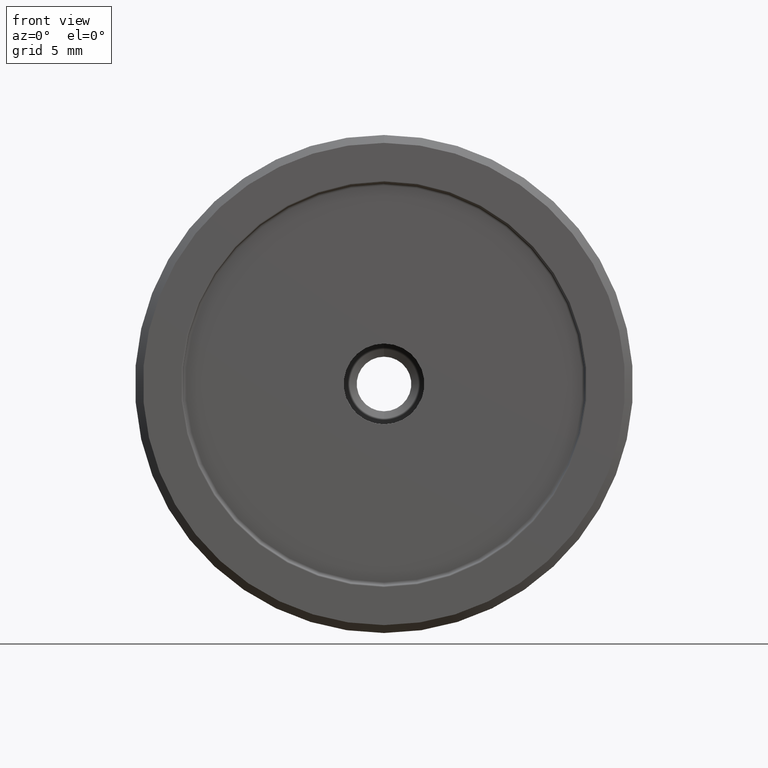
[diagram: clean part render]
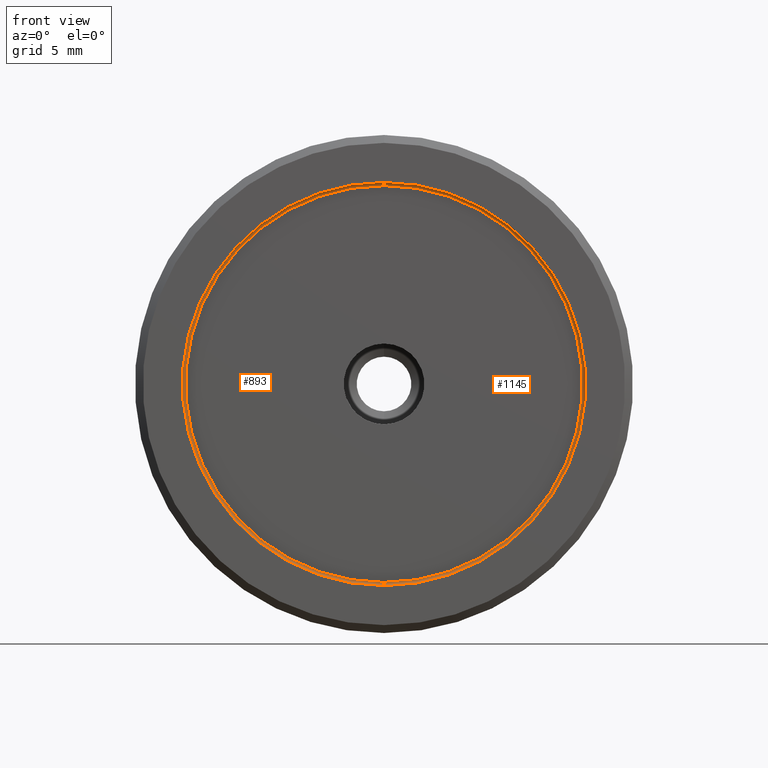
[diagram: same view with one multi-face feature highlighted, each face labeled with its STEP entity id]
A machine part, front view. The highlighted faces form ONE feature: a constant-radius fillet chain: 2 tangent blend faces with common blend radius 0.2 mm. The faces share edges in the B-rep.
Their STEP definitions:
[1] entity #1145 (Torus):
#24 = ORIENTED_EDGE ( 'NONE', *, *, #861, .T. ) ;
#32 = EDGE_LOOP ( 'NONE', ( #1133, #588, #1384, #24 ) ) ;
#34 = CARTESIAN_POINT ( 'NONE',  ( 1.561424668912875111E-15, 0.2999999999999981570, 12.75000000000000000 ) ) ;
#53 = DIRECTION ( 'NONE',  ( -0.000000000000000000, -1.000000000000000000, -0.000000000000000000 ) ) ;
#57 = AXIS2_PLACEMENT_3D ( 'NONE', #307, #199, #551 ) ;
#154 = EDGE_CURVE ( 'NONE', #293, #1166, #1007, .T. ) ;
#159 = FACE_OUTER_BOUND ( 'NONE', #32, .T. ) ;
#177 = DIRECTION ( 'NONE',  ( -0.000000000000000000, -1.000000000000000000, -0.000000000000000000 ) ) ;
#199 = DIRECTION ( 'NONE',  ( -0.000000000000000000, -1.000000000000000000, -0.000000000000000000 ) ) ;
#205 = DIRECTION ( 'NONE',  ( 0.000000000000000000, 0.000000000000000000, 1.000000000000000000 ) ) ;
#245 = CIRCLE ( 'NONE', #785, 0.2000000000000005107 ) ;
#284 = DIRECTION ( 'NONE',  ( 0.000000000000000000, 0.000000000000000000, -1.000000000000000000 ) ) ;
#293 = VERTEX_POINT ( 'NONE', #1173 ) ;
#298 = CARTESIAN_POINT ( 'NONE',  ( 1.536931732929928003E-15, 0.3000000000000000444, 12.54999999999999893 ) ) ;
#307 = CARTESIAN_POINT ( 'NONE',  ( 0.000000000000000000, 0.5000000000000004441, 0.000000000000000000 ) ) ;
#349 = AXIS2_PLACEMENT_3D ( 'NONE', #1305, #177, #284 ) ;
#392 = DIRECTION ( 'NONE',  ( 1.000000000000000000, 0.000000000000000000, -1.224646799147353207E-16 ) ) ;
#455 = VERTEX_POINT ( 'NONE', #34 ) ;
#503 = CIRCLE ( 'NONE', #57, 12.54999999999999893 ) ;
#514 = DIRECTION ( 'NONE',  ( 0.000000000000000000, 0.000000000000000000, -1.000000000000000000 ) ) ;
#550 = CARTESIAN_POINT ( 'NONE',  ( 0.000000000000000000, 0.3000000000000000444, -12.54999999999999893 ) ) ;
#551 = DIRECTION ( 'NONE',  ( 0.000000000000000000, 0.000000000000000000, -1.000000000000000000 ) ) ;
#588 = ORIENTED_EDGE ( 'NONE', *, *, #674, .F. ) ;
#612 = CARTESIAN_POINT ( 'NONE',  ( 1.549178200921401754E-15, 0.5000000000000004441, 12.54999999999999893 ) ) ;
#674 = EDGE_CURVE ( 'NONE', #293, #819, #503, .T. ) ;
#741 = DIRECTION ( 'NONE',  ( -1.224646799147353207E-16, 0.000000000000000000, -1.000000000000000000 ) ) ;
#785 = AXIS2_PLACEMENT_3D ( 'NONE', #298, #392, #741 ) ;
#807 = EDGE_CURVE ( 'NONE', #819, #455, #245, .T. ) ;
#819 = VERTEX_POINT ( 'NONE', #612 ) ;
#861 = EDGE_CURVE ( 'NONE', #1166, #455, #1420, .T. ) ;
#940 = AXIS2_PLACEMENT_3D ( 'NONE', #1428, #53, #514 ) ;
#1007 = CIRCLE ( 'NONE', #1242, 0.2000000000000005107 ) ;
#1133 = ORIENTED_EDGE ( 'NONE', *, *, #807, .F. ) ;
#1145 = ADVANCED_FACE ( 'NONE', ( #159 ), #1197, .F. ) ;
#1166 = VERTEX_POINT ( 'NONE', #1422 ) ;
#1173 = CARTESIAN_POINT ( 'NONE',  ( 0.000000000000000000, 0.5000000000000004441, -12.54999999999999893 ) ) ;
#1197 = TOROIDAL_SURFACE ( 'NONE', #940, 12.54999999999999893, 0.2000000000000002609 ) ;
#1229 = DIRECTION ( 'NONE',  ( -1.000000000000000000, 0.000000000000000000, 0.000000000000000000 ) ) ;
#1242 = AXIS2_PLACEMENT_3D ( 'NONE', #550, #1229, #205 ) ;
#1305 = CARTESIAN_POINT ( 'NONE',  ( 0.000000000000000000, 0.2999999999999981570, 0.000000000000000000 ) ) ;
#1384 = ORIENTED_EDGE ( 'NONE', *, *, #154, .T. ) ;
#1420 = CIRCLE ( 'NONE', #349, 12.75000000000000000 ) ;
#1422 = CARTESIAN_POINT ( 'NONE',  ( 0.000000000000000000, 0.2999999999999981570, -12.75000000000000000 ) ) ;
#1428 = CARTESIAN_POINT ( 'NONE',  ( 0.000000000000000000, 0.3000000000000000444, 0.000000000000000000 ) ) ;
[2] entity #893 (Torus):
#12 = AXIS2_PLACEMENT_3D ( 'NONE', #842, #726, #744 ) ;
#34 = CARTESIAN_POINT ( 'NONE',  ( 1.561424668912875111E-15, 0.2999999999999981570, 12.75000000000000000 ) ) ;
#94 = AXIS2_PLACEMENT_3D ( 'NONE', #1286, #1412, #712 ) ;
#154 = EDGE_CURVE ( 'NONE', #293, #1166, #1007, .T. ) ;
#205 = DIRECTION ( 'NONE',  ( 0.000000000000000000, 0.000000000000000000, 1.000000000000000000 ) ) ;
#245 = CIRCLE ( 'NONE', #785, 0.2000000000000005107 ) ;
#293 = VERTEX_POINT ( 'NONE', #1173 ) ;
#298 = CARTESIAN_POINT ( 'NONE',  ( 1.536931732929928003E-15, 0.3000000000000000444, 12.54999999999999893 ) ) ;
#321 = TOROIDAL_SURFACE ( 'NONE', #1015, 12.54999999999999893, 0.2000000000000002609 ) ;
#392 = DIRECTION ( 'NONE',  ( 1.000000000000000000, 0.000000000000000000, -1.224646799147353207E-16 ) ) ;
#455 = VERTEX_POINT ( 'NONE', #34 ) ;
#550 = CARTESIAN_POINT ( 'NONE',  ( 0.000000000000000000, 0.3000000000000000444, -12.54999999999999893 ) ) ;
#565 = EDGE_CURVE ( 'NONE', #455, #1166, #729, .T. ) ;
#602 = ORIENTED_EDGE ( 'NONE', *, *, #565, .T. ) ;
#606 = FACE_OUTER_BOUND ( 'NONE', #824, .T. ) ;
#612 = CARTESIAN_POINT ( 'NONE',  ( 1.549178200921401754E-15, 0.5000000000000004441, 12.54999999999999893 ) ) ;
#625 = DIRECTION ( 'NONE',  ( -0.000000000000000000, -1.000000000000000000, -0.000000000000000000 ) ) ;
#712 = DIRECTION ( 'NONE',  ( 0.000000000000000000, 0.000000000000000000, -1.000000000000000000 ) ) ;
#726 = DIRECTION ( 'NONE',  ( -0.000000000000000000, -1.000000000000000000, -0.000000000000000000 ) ) ;
#729 = CIRCLE ( 'NONE', #12, 12.75000000000000000 ) ;
#741 = DIRECTION ( 'NONE',  ( -1.224646799147353207E-16, 0.000000000000000000, -1.000000000000000000 ) ) ;
#744 = DIRECTION ( 'NONE',  ( 0.000000000000000000, 0.000000000000000000, -1.000000000000000000 ) ) ;
#785 = AXIS2_PLACEMENT_3D ( 'NONE', #298, #392, #741 ) ;
#807 = EDGE_CURVE ( 'NONE', #819, #455, #245, .T. ) ;
#819 = VERTEX_POINT ( 'NONE', #612 ) ;
#824 = EDGE_LOOP ( 'NONE', ( #1120, #1368, #602, #1338 ) ) ;
#842 = CARTESIAN_POINT ( 'NONE',  ( 0.000000000000000000, 0.2999999999999981570, 0.000000000000000000 ) ) ;
#893 = ADVANCED_FACE ( 'NONE', ( #606 ), #321, .F. ) ;
#1007 = CIRCLE ( 'NONE', #1242, 0.2000000000000005107 ) ;
#1015 = AXIS2_PLACEMENT_3D ( 'NONE', #1409, #625, #1310 ) ;
#1094 = CIRCLE ( 'NONE', #94, 12.54999999999999893 ) ;
#1120 = ORIENTED_EDGE ( 'NONE', *, *, #1353, .F. ) ;
#1166 = VERTEX_POINT ( 'NONE', #1422 ) ;
#1173 = CARTESIAN_POINT ( 'NONE',  ( 0.000000000000000000, 0.5000000000000004441, -12.54999999999999893 ) ) ;
#1229 = DIRECTION ( 'NONE',  ( -1.000000000000000000, 0.000000000000000000, 0.000000000000000000 ) ) ;
#1242 = AXIS2_PLACEMENT_3D ( 'NONE', #550, #1229, #205 ) ;
#1286 = CARTESIAN_POINT ( 'NONE',  ( 0.000000000000000000, 0.5000000000000004441, 0.000000000000000000 ) ) ;
#1310 = DIRECTION ( 'NONE',  ( 0.000000000000000000, 0.000000000000000000, -1.000000000000000000 ) ) ;
#1338 = ORIENTED_EDGE ( 'NONE', *, *, #154, .F. ) ;
#1353 = EDGE_CURVE ( 'NONE', #819, #293, #1094, .T. ) ;
#1368 = ORIENTED_EDGE ( 'NONE', *, *, #807, .T. ) ;
#1409 = CARTESIAN_POINT ( 'NONE',  ( 0.000000000000000000, 0.3000000000000000444, 0.000000000000000000 ) ) ;
#1412 = DIRECTION ( 'NONE',  ( -0.000000000000000000, -1.000000000000000000, -0.000000000000000000 ) ) ;
#1422 = CARTESIAN_POINT ( 'NONE',  ( 0.000000000000000000, 0.2999999999999981570, -12.75000000000000000 ) ) ;